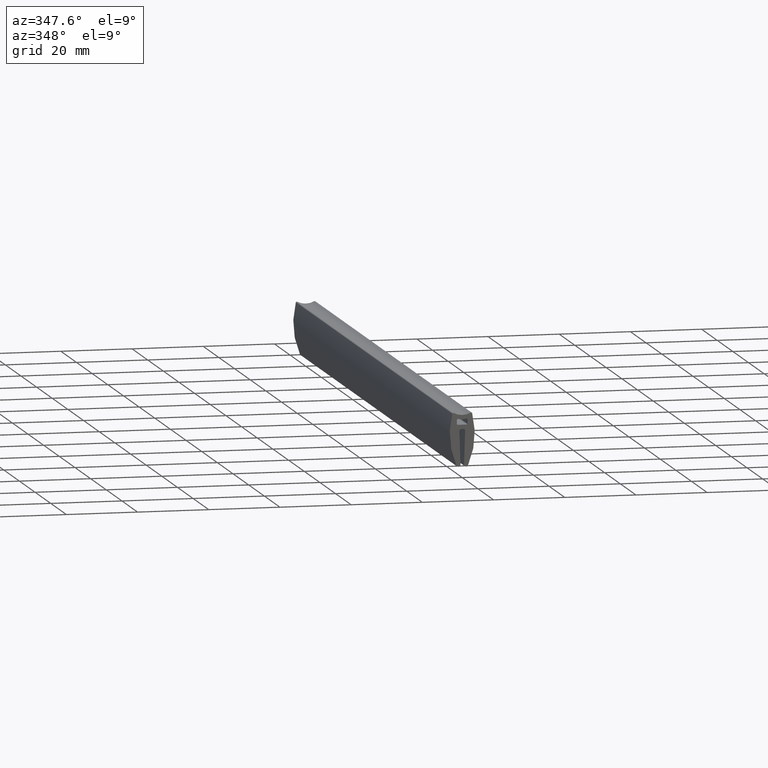
[diagram: clean part render]
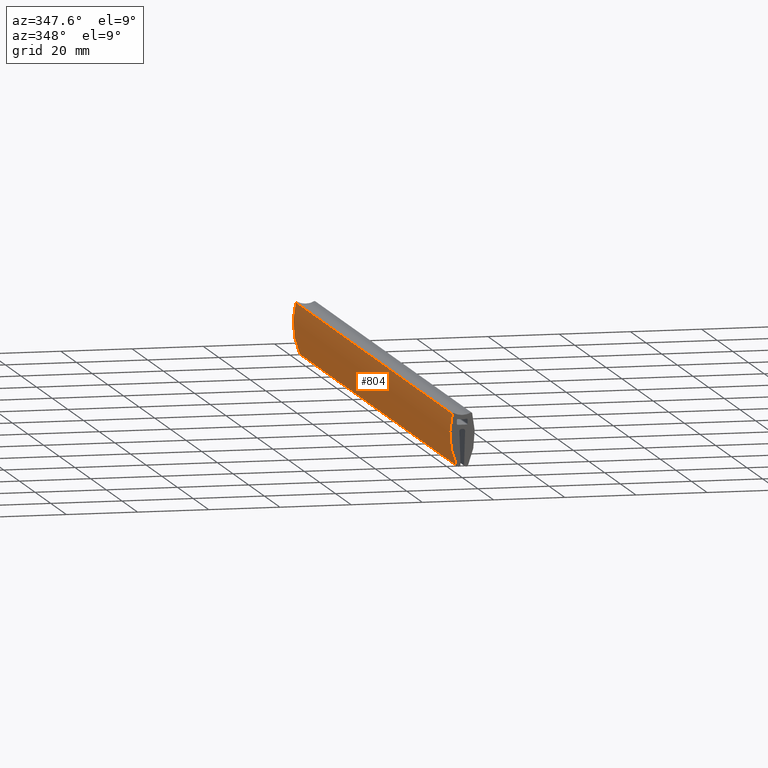
[diagram: same view with one face highlighted and labeled with its STEP entity id]
A machine part, auxiliary view. The second image highlights one B-rep face of the part: STEP entity #804.
In plain terms, the highlighted face is a freeform B-spline surface patch.
Its self-contained STEP definition (entity closure, byte-faithful):
#98=CARTESIAN_POINT('',(-2.790322580637395,0.0,0.402254483160228));
#99=VERTEX_POINT('',#98);
#115=CARTESIAN_POINT('',(-1.627461204791730,0.0,-14.022243352574860));
#116=VERTEX_POINT('',#115);
#117=CARTESIAN_POINT('',(-2.790322580637395,0.0,0.402254483160228));
#118=CARTESIAN_POINT('',(-4.720688985612155,0.0,-7.012488265449623));
#119=CARTESIAN_POINT('',(-1.627461204791730,0.0,-14.022243352574860));
#127=(BOUNDED_CURVE()B_SPLINE_CURVE(2,(#117,#118,#119),.UNSPECIFIED.,.F.,.U.)CURVE()GEOMETRIC_REPRESENTATION_ITEM()QUASI_UNIFORM_CURVE()RATIONAL_B_SPLINE_CURVE((1.0,0.944367167422012,1.0))REPRESENTATION_ITEM(''));
#128=EDGE_CURVE('',#99,#116,#127,.T.);
#416=CARTESIAN_POINT('',(-1.627461204791730,200.0,-14.022243352574860));
#417=VERTEX_POINT('',#416);
#433=CARTESIAN_POINT('',(-2.790322580637395,200.0,0.402254483160228));
#434=VERTEX_POINT('',#433);
#435=CARTESIAN_POINT('',(-2.790322580637395,200.0,0.402254483160228));
#436=CARTESIAN_POINT('',(-4.720688985612155,200.0,-7.012488265449623));
#437=CARTESIAN_POINT('',(-1.627461204791667,200.0,-14.022243352574840));
#445=(BOUNDED_CURVE()B_SPLINE_CURVE(2,(#435,#436,#437),.UNSPECIFIED.,.F.,.U.)CURVE()GEOMETRIC_REPRESENTATION_ITEM()QUASI_UNIFORM_CURVE()RATIONAL_B_SPLINE_CURVE((1.0,0.944367167422012,1.0))REPRESENTATION_ITEM(''));
#446=EDGE_CURVE('',#434,#417,#445,.T.);
#770=CARTESIAN_POINT('',(-1.627461204791730,200.0,-14.022243352574860));
#771=CARTESIAN_POINT('',(-1.627461204791730,0.0,-14.022243352574860));
#772=QUASI_UNIFORM_CURVE('',1,(#770,#771),.UNSPECIFIED.,.F.,.U.);
#773=EDGE_CURVE('',#417,#116,#772,.T.);
#780=CARTESIAN_POINT('',(-1.326882442973995,205.000000000000090,-14.674376257585536));
#781=CARTESIAN_POINT('',(-1.326882442973995,-5.125000000000001,-14.674376257585536));
#782=CARTESIAN_POINT('',(-5.001639145543403,205.000000000000030,-7.032259578980466));
#783=CARTESIAN_POINT('',(-5.001639145543403,-5.125000000000001,-7.032259578980466));
#784=CARTESIAN_POINT('',(-2.596574987079083,205.000000000000030,1.099250154529228));
#785=CARTESIAN_POINT('',(-2.596574987079083,-5.125000000000000,1.099250154529228));
#793=(BOUNDED_SURFACE()B_SPLINE_SURFACE(1,2,((#780,#782,#784),(#781,#783,#785)),.UNSPECIFIED.,.F.,.F.,.U.)B_SPLINE_SURFACE_WITH_KNOTS((2,2),(3,3),(0.0,210.125000000000110),(0.0,16.372346396564911),.UNSPECIFIED.)GEOMETRIC_REPRESENTATION_ITEM()RATIONAL_B_SPLINE_SURFACE(((0.999217683187613,0.928746991944258,0.991495072913396),(0.999217683187613,0.928746991944258,0.991495072913396)))REPRESENTATION_ITEM('')SURFACE());
#794=ORIENTED_EDGE('',*,*,#128,.F.);
#795=CARTESIAN_POINT('',(-2.790322580637395,200.0,0.402254483160228));
#796=CARTESIAN_POINT('',(-2.790322580637395,0.0,0.402254483160228));
#797=QUASI_UNIFORM_CURVE('',1,(#795,#796),.UNSPECIFIED.,.F.,.U.);
#798=EDGE_CURVE('',#434,#99,#797,.T.);
#799=ORIENTED_EDGE('',*,*,#798,.F.);
#800=ORIENTED_EDGE('',*,*,#446,.T.);
#801=ORIENTED_EDGE('',*,*,#773,.T.);
#802=EDGE_LOOP('',(#794,#799,#800,#801));
#803=FACE_OUTER_BOUND('',#802,.T.);
#804=ADVANCED_FACE('',(#803),#793,.T.);